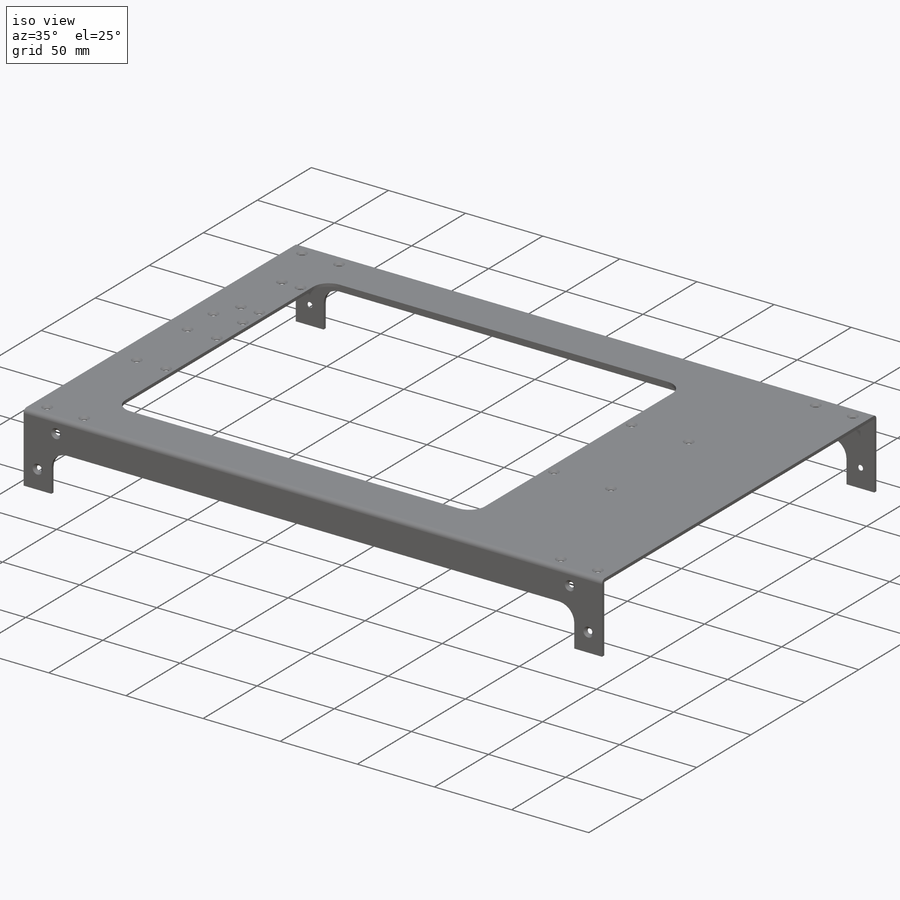
[diagram: iso view]
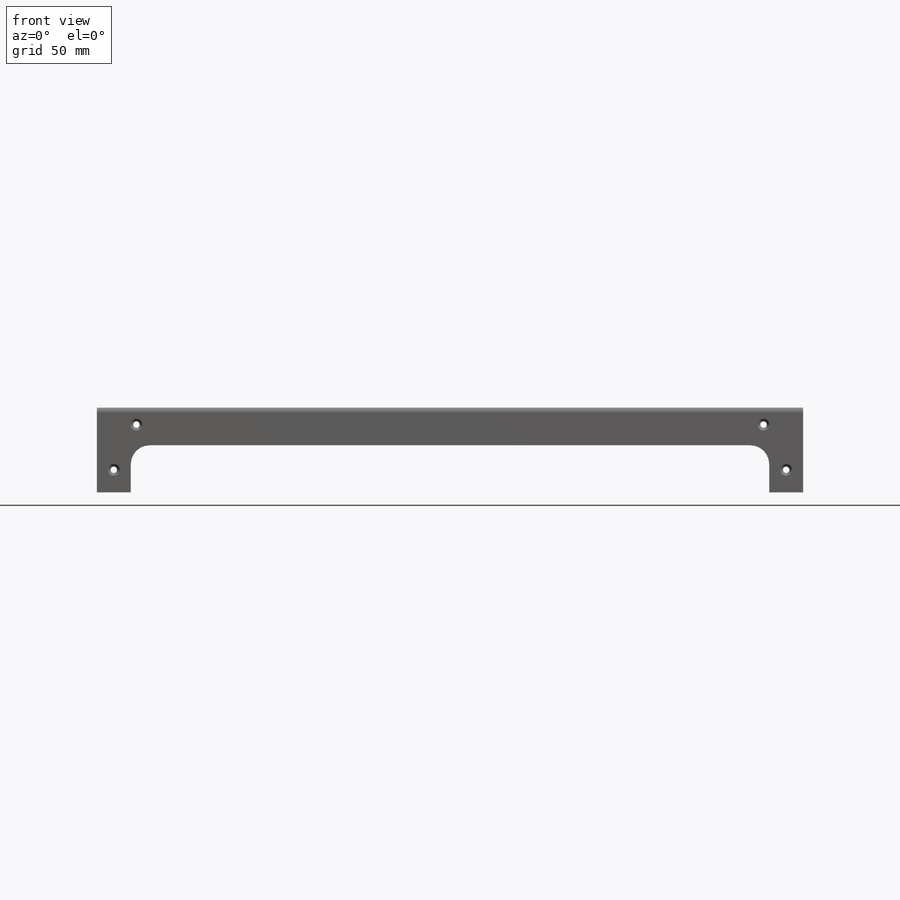
[diagram: front view]
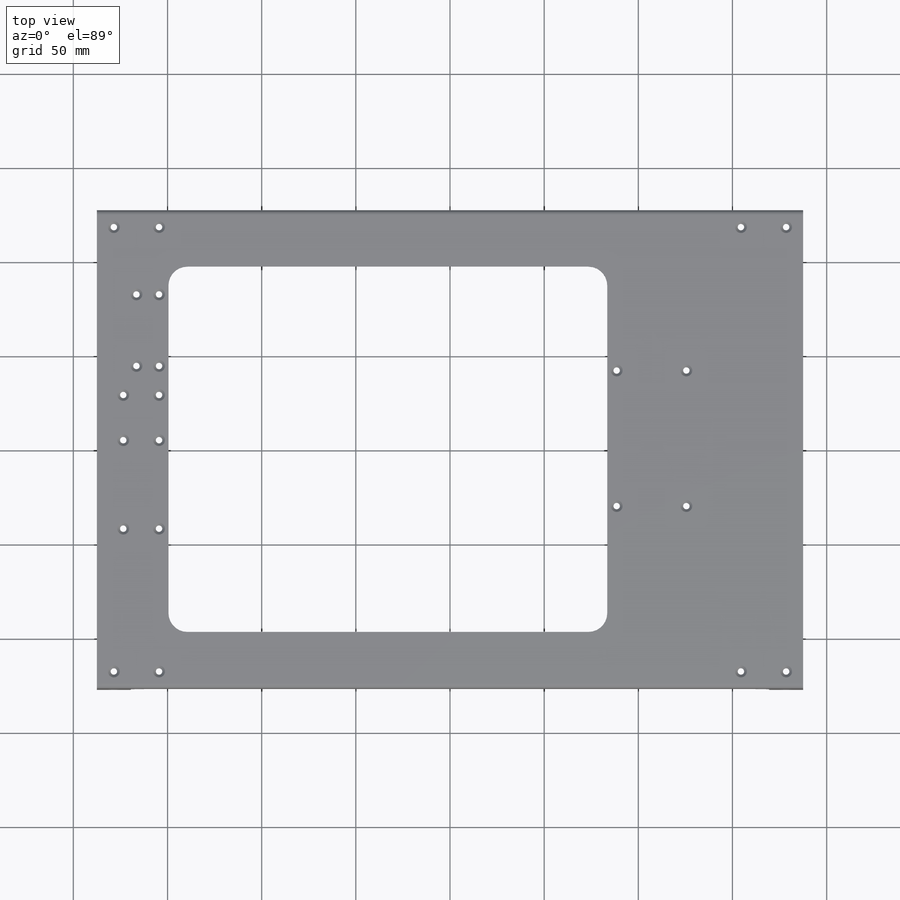
[diagram: top view]
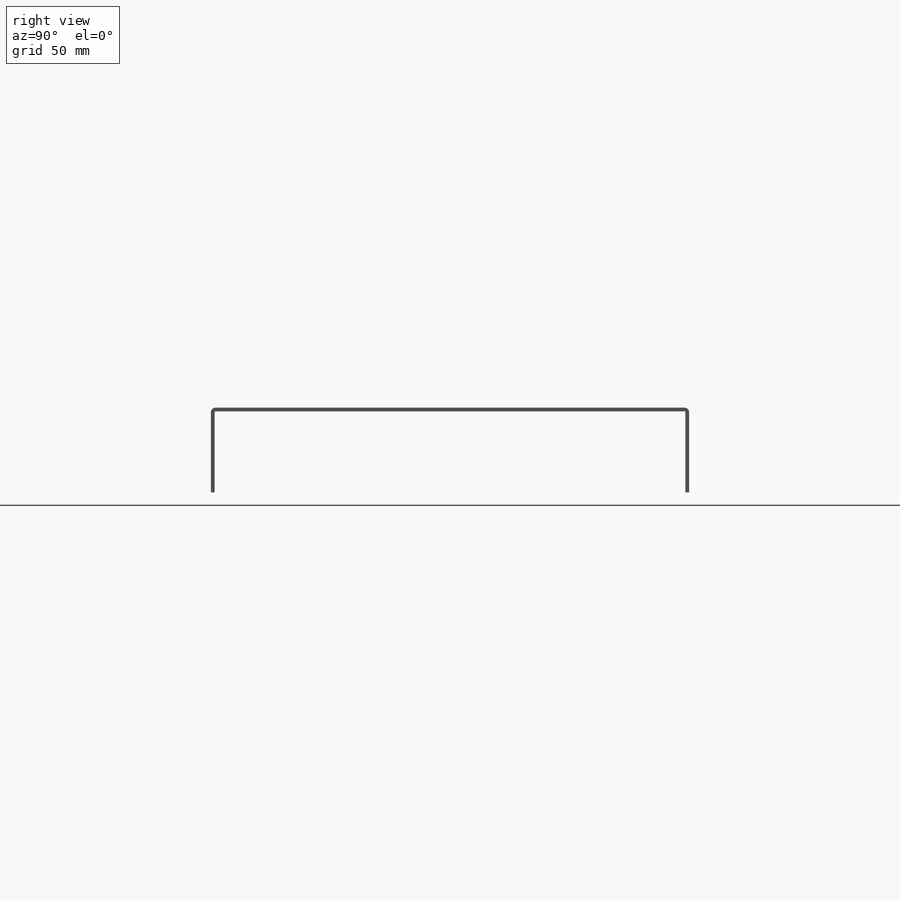
[diagram: right view]
SOLIDWORKS PART (.sldprt)
format: sldprt  version: not decoded by parser v0  size: 473,600 bytes
history: native  units: mm
features: sketch x11, cut_extrude x4, hole x3, material x1, extrude x1 (+11 scaffold rows collapsed)
feature tree (31):
  scaffold x11  (default folders/planes/origin — collapsed)
  material  "6061-T6 (SS)"
  sketch  "Sketch1"  dims[c1.D1=2.5mm c1.D2=203.2mm c1.D3=2.0mm c1.D4=45.0mm c2.D2=250.0mm]
  extrude  "Boss-Extrude1"  Depth=375mm
  sketch  "Sketch2"  dims[D4=10.0mm D1=18.0mm D2=20.0mm D3=18.0mm]
  cut_extrude  "Cut-Extrude1"  [1 undecoded]
  sketch  "Sketch3"  dims[c1.D9=10.0mm c1.D5=10.0mm c1.D1=30.0mm c1.D2=30.0mm c1.D3=104.0mm c1.D4=38.0mm c2.D5=10.0mm c2.D6=10.0mm c2.D7=10.0mm c2.D8=10.0mm]
  cut_extrude  "Cut-Extrude2"  Depth=10mm
  sketch  "Sketch4"  dims[D1=3.0mm D2=9.0mm D3=9.0mm D4=9.0mm D5=21.0mm D6=33.0mm D7=21.0mm]
  cut_extrude  "Cut-Extrude3"  [1 undecoded]
  sketch  "Sketch5"  dims[D1=3.0mm D2=9.0mm D3=9.0mm D4=9.0mm D5=33.0mm D6=9.0mm D7=33.0mm D8=97.0mm D9=25.0mm D10=54.3mm D11=65.0mm]
  cut_extrude  "Cut-Extrude4"  Depth=10mm
  hole  "CSK for M3 Flat Head Machine Screw1"  Diameter=3.4mm Depth=45mm
  sketch  "Sketch7"
  sketch  "Sketch6"  dims[hole-wizard template sketch: 55 standard entries collapsed; hole parameters kept: c17.Thru Hole Depth=45.0mm c17.Near C'Sink Dia.=6.3mm c17.D4=~3.666174mm c17.Near C'Sink Angle=90.0deg]
  hole  "CSK for M3 Flat Head Machine Screw2"  Diameter=3.4mm Depth=10mm
  sketch  "Sketch9"
  sketch  "Sketch8"  dims[hole-wizard template sketch: 46 standard entries collapsed; hole parameters above]
  hole  "CSK for M3 Flat Head Machine Screw3"  Diameter=3.4mm Depth=10mm
  sketch  "Sketch11"
  sketch  "Sketch10"  dims[hole-wizard template sketch: 46 standard entries collapsed; hole parameters above]
decode coverage: 14 of 19 modeling features carry decoded parameters
note: ~ marks probable driven/reference dimensions
note: 2 parameter values undecoded
note: suppression state not decoded; provenance and decode notes live in map.json
